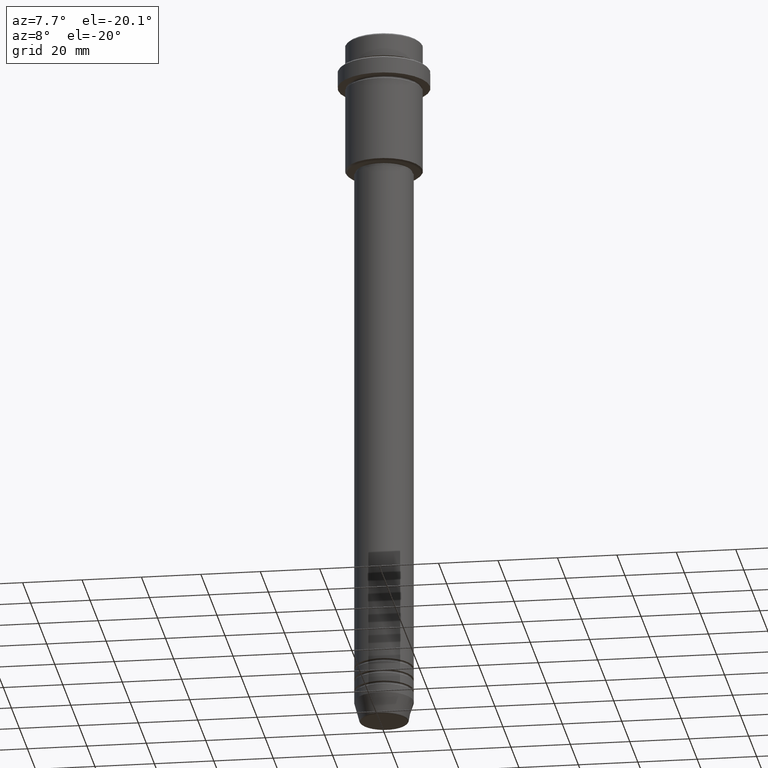
[diagram: clean part render]
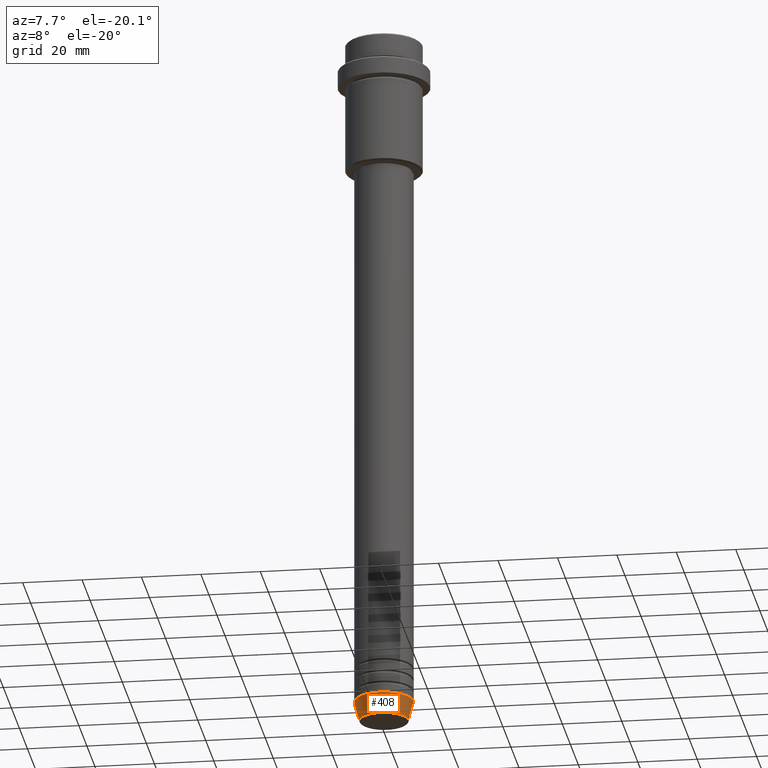
[diagram: same view with one face highlighted and labeled with its STEP entity id]
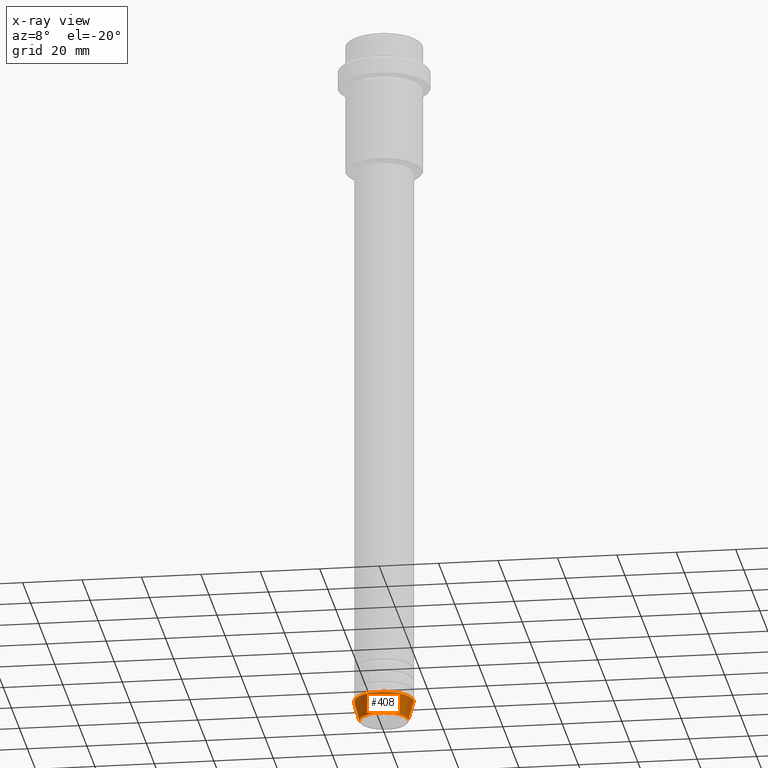
[diagram: x-ray of the same camera — body ghosted, the highlighted face saturated]
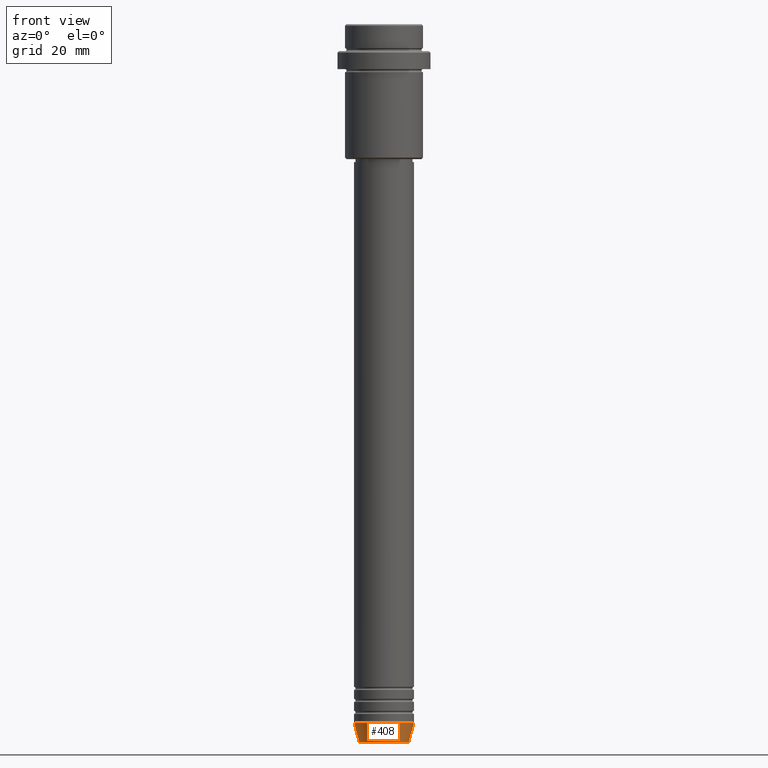
[diagram: same view with one face highlighted and labeled with its STEP entity id]
A machine part, auxiliary view. The second image highlights one B-rep face of the part: STEP entity #408.
The next image is the same camera in x-ray: the body ghosted, the highlighted face saturated — about 0% of this face is hidden behind the body in this view.
A second angle (front view) of the same face is appended — the face is thin or edge-on in the first view.
In plain terms, the highlighted conical surface has half-angle 15 deg.
Its self-contained STEP definition (entity closure, byte-faithful):
#28 = VERTEX_POINT ( 'NONE', #1358 ) ;
#39 = CARTESIAN_POINT ( 'NONE',  ( 0.000000000000000000, 0.000000000000000000, -239.6294095225513274 ) ) ;
#66 = EDGE_CURVE ( 'NONE', #28, #982, #282, .T. ) ;
#104 = EDGE_CURVE ( 'NONE', #1165, #1175, #1140, .T. ) ;
#143 = CIRCLE ( 'NONE', #1126, 8.223655072137193045 ) ;
#159 = CARTESIAN_POINT ( 'NONE',  ( -10.00000000000000000, 1.224646799147353256E-15, -233.0000000000000284 ) ) ;
#165 = ORIENTED_EDGE ( 'NONE', *, *, #66, .T. ) ;
#174 = DIRECTION ( 'NONE',  ( 0.2588190451025205174, 0.000000000000000000, 0.9659258262890684232 ) ) ;
#209 = CIRCLE ( 'NONE', #393, 10.00000000000000000 ) ;
#216 = ORIENTED_EDGE ( 'NONE', *, *, #104, .F. ) ;
#255 = CARTESIAN_POINT ( 'NONE',  ( -10.00000000000000000, 1.224646799147353256E-15, -233.0000000000000284 ) ) ;
#282 = LINE ( 'NONE', #1155, #1303 ) ;
#393 = AXIS2_PLACEMENT_3D ( 'NONE', #1380, #829, #824 ) ;
#408 = ADVANCED_FACE ( 'NONE', ( #1026 ), #659, .T. ) ;
#474 = DIRECTION ( 'NONE',  ( 1.000000000000000000, 0.000000000000000000, 0.000000000000000000 ) ) ;
#486 = DIRECTION ( 'NONE',  ( -0.2588190451025205174, 3.169619151431761243E-17, 0.9659258262890684232 ) ) ;
#634 = EDGE_LOOP ( 'NONE', ( #216, #1111, #165, #1379 ) ) ;
#638 = CARTESIAN_POINT ( 'NONE',  ( 10.00000000000000000, 0.000000000000000000, -233.0000000000000284 ) ) ;
#659 = CONICAL_SURFACE ( 'NONE', #747, 10.00000000000000000, 0.2617993877991491303 ) ;
#672 = EDGE_CURVE ( 'NONE', #1175, #982, #209, .T. ) ;
#733 = EDGE_CURVE ( 'NONE', #1165, #28, #143, .T. ) ;
#747 = AXIS2_PLACEMENT_3D ( 'NONE', #902, #1134, #1349 ) ;
#824 = DIRECTION ( 'NONE',  ( 1.000000000000000000, 0.000000000000000000, 0.000000000000000000 ) ) ;
#829 = DIRECTION ( 'NONE',  ( -0.000000000000000000, -0.000000000000000000, 1.000000000000000000 ) ) ;
#902 = CARTESIAN_POINT ( 'NONE',  ( 0.000000000000000000, 0.000000000000000000, -233.0000000000000284 ) ) ;
#982 = VERTEX_POINT ( 'NONE', #638 ) ;
#1022 = DIRECTION ( 'NONE',  ( -0.000000000000000000, -0.000000000000000000, 1.000000000000000000 ) ) ;
#1026 = FACE_OUTER_BOUND ( 'NONE', #634, .T. ) ;
#1111 = ORIENTED_EDGE ( 'NONE', *, *, #733, .T. ) ;
#1121 = CARTESIAN_POINT ( 'NONE',  ( -8.223655072137193045, 1.115877042642912251E-15, -239.6294095225513274 ) ) ;
#1126 = AXIS2_PLACEMENT_3D ( 'NONE', #39, #1022, #474 ) ;
#1134 = DIRECTION ( 'NONE',  ( -0.000000000000000000, -0.000000000000000000, 1.000000000000000000 ) ) ;
#1140 = LINE ( 'NONE', #159, #1237 ) ;
#1155 = CARTESIAN_POINT ( 'NONE',  ( 10.00000000000000000, 0.000000000000000000, -233.0000000000000284 ) ) ;
#1165 = VERTEX_POINT ( 'NONE', #1121 ) ;
#1175 = VERTEX_POINT ( 'NONE', #255 ) ;
#1237 = VECTOR ( 'NONE', #486, 1000.000000000000114 ) ;
#1303 = VECTOR ( 'NONE', #174, 1000.000000000000114 ) ;
#1349 = DIRECTION ( 'NONE',  ( 1.000000000000000000, 0.000000000000000000, 0.000000000000000000 ) ) ;
#1358 = CARTESIAN_POINT ( 'NONE',  ( 8.223655072137193045, 0.000000000000000000, -239.6294095225513274 ) ) ;
#1379 = ORIENTED_EDGE ( 'NONE', *, *, #672, .F. ) ;
#1380 = CARTESIAN_POINT ( 'NONE',  ( 0.000000000000000000, 0.000000000000000000, -233.0000000000000284 ) ) ;